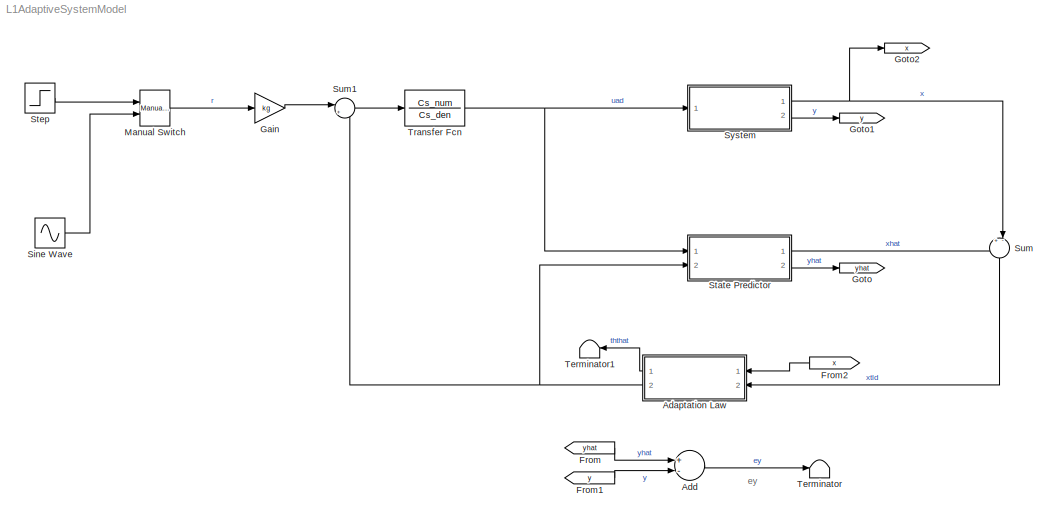
MODEL L1AdaptiveSystemModel
KIND model
CONFIG InitFcn = initL1AdaptiveSystemModel
CONFIG StopFcn = plotlab
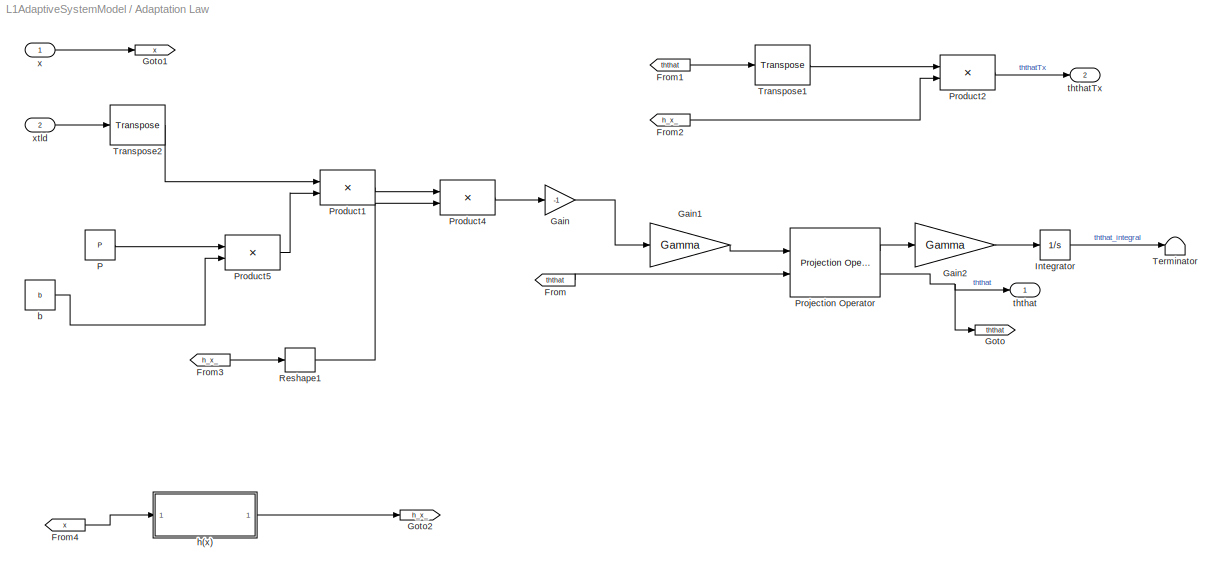
BLOCK [SubSystem] Adaptation Law
  FunctionWithSeparateData = off
  MaskHideContents = off
  MinAlgLoopOccurrences = on
  Opaque = off
  Ports = [2, 2]
  PropExecContextOutsideSubsystem = off
  RTWSystemCode = Auto
  RequestExecContextInheritance = off
  TreatAsAtomicUnit = on
BLOCK [From] Adaptation Law/From
  GotoTag = ththat
BLOCK [From] Adaptation Law/From1
  GotoTag = ththat
BLOCK [From] Adaptation Law/From2
  GotoTag = h_x_
BLOCK [From] Adaptation Law/From3
  GotoTag = h_x_
BLOCK [From] Adaptation Law/From4
  GotoTag = x
BLOCK [Gain] Adaptation Law/Gain
  Gain = -1
  OutDataType = fixdt(1, 16)
  OutDataTypeMode = Inherit via internal rule
  OutDataTypeStr = Inherit: Inherit via internal rule
  OutScaling = 2^0
  ParamDataTypeStr = Inherit: Inherit via internal rule
  ParameterDataType = fixdt(1, 16)
  ParameterDataTypeMode = Inherit via internal rule
  ParameterScaling = 2^0
  SaturateOnIntegerOverflow = off
BLOCK [Gain] Adaptation Law/Gain1
  Gain = Gamma
  OutDataType = fixdt(1, 16)
  OutDataTypeMode = Inherit via internal rule
  OutDataTypeStr = Inherit: Inherit via internal rule
  OutScaling = 2^0
  ParamDataTypeStr = Inherit: Inherit via internal rule
  ParameterDataType = fixdt(1, 16)
  ParameterDataTypeMode = Inherit via internal rule
  ParameterScaling = 2^0
  SaturateOnIntegerOverflow = off
BLOCK [Gain] Adaptation Law/Gain2
  Gain = Gamma
  OutDataType = fixdt(1, 16)
  OutDataTypeMode = Inherit via internal rule
  OutDataTypeStr = Inherit: Inherit via internal rule
  OutScaling = 2^0
  ParamDataTypeStr = Inherit: Inherit via internal rule
  ParameterDataType = fixdt(1, 16)
  ParameterDataTypeMode = Inherit via internal rule
  ParameterScaling = 2^0
  SaturateOnIntegerOverflow = off
BLOCK [Goto] Adaptation Law/Goto
  GotoTag = ththat
  TagVisibility = local
BLOCK [Goto] Adaptation Law/Goto1
  GotoTag = x
  TagVisibility = local
BLOCK [Goto] Adaptation Law/Goto2
  GotoTag = h_x_
  TagVisibility = local
BLOCK [Integrator] Adaptation Law/Integrator
  InitialCondition = ththat0
  Ports = [1, 1]
BLOCK [Constant] Adaptation Law/P
  OutDataType = fixdt(1, 16)
  OutScaling = 2^0
  Value = P
  VectorParams1D = off
BLOCK [Product] Adaptation Law/Product1
  InputSameDT = off
  Multiplication = Matrix(*)
  OutDataType = fixdt(1, 16)
  OutDataTypeMode = Inherit via internal rule
  OutDataTypeStr = Inherit: Inherit via internal rule
  OutScaling = 2^0
  Ports = [2, 1]
  SaturateOnIntegerOverflow = off
BLOCK [Product] Adaptation Law/Product2
  InputSameDT = off
  Multiplication = Matrix(*)
  OutDataType = fixdt(1, 16)
  OutDataTypeMode = Inherit via internal rule
  OutDataTypeStr = Inherit: Inherit via internal rule
  OutScaling = 2^0
  Ports = [2, 1]
  SaturateOnIntegerOverflow = off
BLOCK [Product] Adaptation Law/Product4
  InputSameDT = off
  OutDataType = fixdt(1, 16)
  OutDataTypeMode = Inherit via internal rule
  OutDataTypeStr = Inherit: Inherit via internal rule
  OutScaling = 2^0
  Ports = [2, 1]
  SaturateOnIntegerOverflow = off
BLOCK [Product] Adaptation Law/Product5
  InputSameDT = off
  Multiplication = Matrix(*)
  OutDataType = fixdt(1, 16)
  OutDataTypeMode = Inherit via internal rule
  OutDataTypeStr = Inherit: Inherit via internal rule
  OutScaling = 2^0
  Ports = [2, 1]
  SaturateOnIntegerOverflow = off
BLOCK [Reference] Adaptation Law/Projection Operator  REF=Projection/Projection Operator
  EpsilonTheta = .1
  FunctionWithSeparateData = off
  Ports = [2, 2]
  Pr0 = ththat0
  Prcenter = 0
  Prmax = 1
  RTWMemSecDataConstants = Inherit from model
  RTWMemSecDataInternal = Inherit from model
  RTWMemSecDataParameters = Inherit from model
  RTWMemSecFuncExecute = Inherit from model
  RTWMemSecFuncInitTerm = Inherit from model
  ShowPortLabels = FromPortIcon
  SourceBlock = Projection/Projection Operator
  SystemSampleTime = -1
BLOCK [Reshape] Adaptation Law/Reshape1
  OutputDimensionality = Column vector (2-D)
  OutputDimensions = [1]
  Ports = [1, 1]
BLOCK [Terminator] Adaptation Law/Terminator
BLOCK [Reference] Adaptation Law/Transpose1  REF=dspmtrx3/Transpose
  FunctionWithSeparateData = off
  Hermitian = off
  Ports = [1, 1]
  RTWMemSecDataConstants = Inherit from model
  RTWMemSecDataInternal = Inherit from model
  RTWMemSecDataParameters = Inherit from model
  RTWMemSecFuncExecute = Inherit from model
  RTWMemSecFuncInitTerm = Inherit from model
  ShowPortLabels = FromPortIcon
  SourceBlock = dspmtrx3/Transpose
  SourceType = Transpose
  SystemSampleTime = -1
  overflowFlag = off
BLOCK [Reference] Adaptation Law/Transpose2  REF=dspmtrx3/Transpose
  FunctionWithSeparateData = off
  Hermitian = off
  Ports = [1, 1]
  RTWMemSecDataConstants = Inherit from model
  RTWMemSecDataInternal = Inherit from model
  RTWMemSecDataParameters = Inherit from model
  RTWMemSecFuncExecute = Inherit from model
  RTWMemSecFuncInitTerm = Inherit from model
  ShowPortLabels = FromPortIcon
  SourceBlock = dspmtrx3/Transpose
  SourceType = Transpose
  SystemSampleTime = -1
  overflowFlag = off
BLOCK [Constant] Adaptation Law/b
  OutDataType = fixdt(1, 16)
  OutScaling = 2^0
  Value = b
  VectorParams1D = off
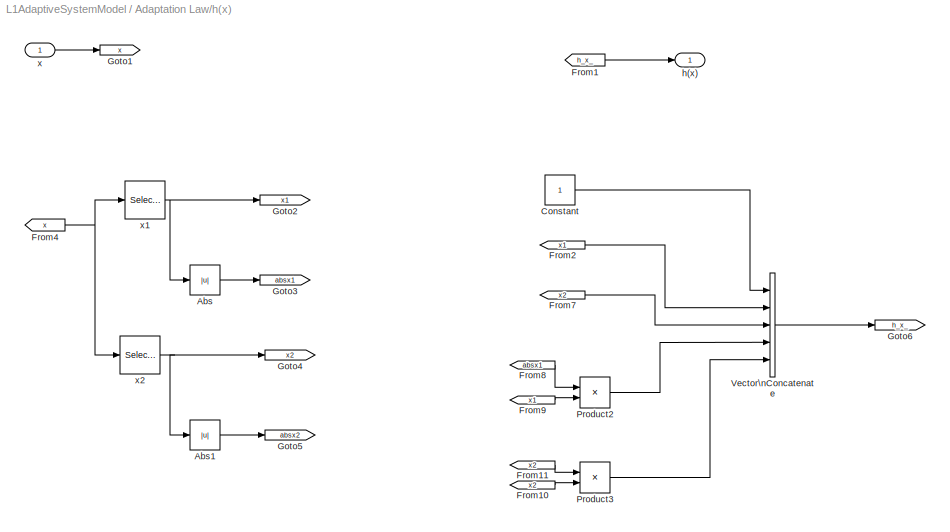
BLOCK [SubSystem] Adaptation Law/h(x)
  FunctionWithSeparateData = off
  MaskHideContents = off
  MinAlgLoopOccurrences = off
  Opaque = off
  Ports = [1, 1]
  PropExecContextOutsideSubsystem = off
  RTWSystemCode = Auto
  RequestExecContextInheritance = off
  TreatAsAtomicUnit = on
BLOCK [Abs] Adaptation Law/h(x)/Abs
  OutDataType = fixdt(1, 16)
  OutScaling = 2^0
  SaturateOnIntegerOverflow = off
BLOCK [Abs] Adaptation Law/h(x)/Abs1
  OutDataType = fixdt(1, 16)
  OutScaling = 2^0
  SaturateOnIntegerOverflow = off
BLOCK [Constant] Adaptation Law/h(x)/Constant
  OutDataType = fixdt(1, 16)
  OutScaling = 2^0
BLOCK [From] Adaptation Law/h(x)/From1
  GotoTag = h_x_
BLOCK [From] Adaptation Law/h(x)/From10
  GotoTag = x2
BLOCK [From] Adaptation Law/h(x)/From11
  GotoTag = x2
BLOCK [From] Adaptation Law/h(x)/From2
  GotoTag = x1
BLOCK [From] Adaptation Law/h(x)/From4
  GotoTag = x
BLOCK [From] Adaptation Law/h(x)/From7
  GotoTag = x2
BLOCK [From] Adaptation Law/h(x)/From8
  GotoTag = absx1
BLOCK [From] Adaptation Law/h(x)/From9
  GotoTag = x1
BLOCK [Goto] Adaptation Law/h(x)/Goto1
  GotoTag = x
  TagVisibility = local
BLOCK [Goto] Adaptation Law/h(x)/Goto2
  GotoTag = x1
  TagVisibility = local
BLOCK [Goto] Adaptation Law/h(x)/Goto3
  GotoTag = absx1
  TagVisibility = local
BLOCK [Goto] Adaptation Law/h(x)/Goto4
  GotoTag = x2
  TagVisibility = local
BLOCK [Goto] Adaptation Law/h(x)/Goto5
  GotoTag = absx2
  TagVisibility = local
BLOCK [Goto] Adaptation Law/h(x)/Goto6
  GotoTag = h_x_
  TagVisibility = local
BLOCK [Product] Adaptation Law/h(x)/Product2
  InputSameDT = off
  OutDataType = fixdt(1, 16)
  OutDataTypeMode = Inherit via internal rule
  OutDataTypeStr = Inherit: Inherit via internal rule
  OutScaling = 2^0
  Ports = [2, 1]
  SaturateOnIntegerOverflow = off
BLOCK [Product] Adaptation Law/h(x)/Product3
  InputSameDT = off
  OutDataType = fixdt(1, 16)
  OutDataTypeMode = Inherit via internal rule
  OutDataTypeStr = Inherit: Inherit via internal rule
  OutScaling = 2^0
  Ports = [2, 1]
  SaturateOnIntegerOverflow = off
BLOCK [Concatenate] Adaptation Law/h(x)/Vector\nConcatenate
  Mode = Vector
  NumInputs = 5
  Ports = [5, 1]
BLOCK [Outport] Adaptation Law/h(x)/h(x)
  IconDisplay = Port number
  OutDataType = fixdt(1, 16)
  OutScaling = 2^0
BLOCK [Inport] Adaptation Law/h(x)/x
  IconDisplay = Port number
  OutDataType = fixdt(1, 16)
  OutScaling = 2^0
BLOCK [Selector] Adaptation Law/h(x)/x1
  IndexOptions = Index vector (dialog)
  Indices = [1 ]
  InputPortWidth = 2
  OutputSizes = 1
  Ports = [1, 1]
BLOCK [Selector] Adaptation Law/h(x)/x2
  IndexOptions = Index vector (dialog)
  Indices = 2
  InputPortWidth = 2
  OutputSizes = 1
  Ports = [1, 1]
BLOCK [Outport] Adaptation Law/ththat
  IconDisplay = Port number
  OutDataType = fixdt(1, 16)
  OutScaling = 2^0
BLOCK [Outport] Adaptation Law/ththatTx
  IconDisplay = Port number
  OutDataType = fixdt(1, 16)
  OutScaling = 2^0
  Port = 2
BLOCK [Inport] Adaptation Law/x
  IconDisplay = Port number
  OutDataType = fixdt(1, 16)
  OutScaling = 2^0
BLOCK [Inport] Adaptation Law/xtld
  IconDisplay = Port number
  OutDataType = fixdt(1, 16)
  OutScaling = 2^0
  Port = 2
BLOCK [Sum] Add
  InputSameDT = off
  Inputs = +-
  OutDataType = fixdt(1, 16)
  OutDataTypeMode = Inherit via internal rule
  OutDataTypeStr = Inherit: Inherit via internal rule
  OutScaling = 2^-10
  Ports = [2, 1]
  SaturateOnIntegerOverflow = off
BLOCK [From] From
  GotoTag = yhat
BLOCK [From] From1
  GotoTag = y
BLOCK [From] From2
  GotoTag = x
BLOCK [Gain] Gain
  Gain = kg
  OutDataType = fixdt(1, 16)
  OutDataTypeMode = Inherit via internal rule
  OutDataTypeStr = Inherit: Inherit via internal rule
  OutScaling = 2^0
  ParamDataTypeStr = Inherit: Inherit via internal rule
  ParameterDataType = fixdt(1, 16)
  ParameterDataTypeMode = Inherit via internal rule
  ParameterScaling = 2^0
  SaturateOnIntegerOverflow = off
BLOCK [Goto] Goto
  GotoTag = yhat
  TagVisibility = local
BLOCK [Goto] Goto1
  GotoTag = y
  TagVisibility = local
BLOCK [Goto] Goto2
  GotoTag = x
  TagVisibility = local
BLOCK [Reference] Manual Switch  REF=simulink/Signal\nRouting/Manual Switch
  FunctionWithSeparateData = off
  Ports = [2, 1]
  RTWMemSecDataConstants = Inherit from model
  RTWMemSecDataInternal = Inherit from model
  RTWMemSecDataParameters = Inherit from model
  RTWMemSecFuncExecute = Inherit from model
  RTWMemSecFuncInitTerm = Inherit from model
  ShowPortLabels = FromPortIcon
  SourceBlock = simulink/Signal\nRouting/Manual Switch
  SourceType = Manual Switch
  SystemSampleTime = -1
  action = 0
  sw = 0
  varsize = off
BLOCK [Sin] Sine Wave
  Amplitude = -2
  Bias = 0
  Frequency = 0.15
  Offset = 0
  Phase = 0
  Ports = [0, 1]
  SampleTime = 0
  Samples = 10
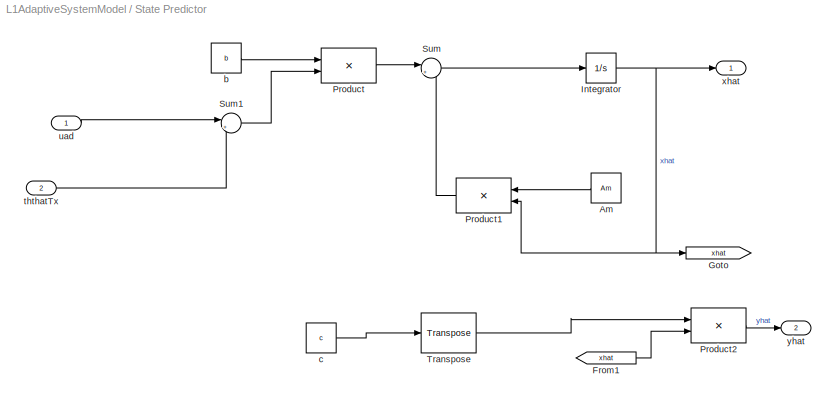
BLOCK [SubSystem] State Predictor
  FunctionWithSeparateData = off
  MaskHideContents = off
  MinAlgLoopOccurrences = on
  Opaque = off
  Ports = [2, 2]
  PropExecContextOutsideSubsystem = off
  RTWSystemCode = Auto
  RequestExecContextInheritance = off
  TreatAsAtomicUnit = on
BLOCK [Constant] State Predictor/Am
  OutDataType = fixdt(1, 16)
  OutScaling = 2^0
  Value = Am
  VectorParams1D = off
BLOCK [From] State Predictor/From1
  GotoTag = xhat
BLOCK [Goto] State Predictor/Goto
  GotoTag = xhat
  TagVisibility = local
BLOCK [Integrator] State Predictor/Integrator
  InitialCondition = xhat0
  Ports = [1, 1]
BLOCK [Product] State Predictor/Product
  InputSameDT = off
  Multiplication = Matrix(*)
  OutDataType = fixdt(1, 16)
  OutDataTypeMode = Inherit via internal rule
  OutDataTypeStr = Inherit: Inherit via internal rule
  OutScaling = 2^0
  Ports = [2, 1]
  SaturateOnIntegerOverflow = off
BLOCK [Product] State Predictor/Product1
  InputSameDT = off
  Multiplication = Matrix(*)
  OutDataType = fixdt(1, 16)
  OutDataTypeMode = Inherit via internal rule
  OutDataTypeStr = Inherit: Inherit via internal rule
  OutScaling = 2^0
  Ports = [2, 1]
  SaturateOnIntegerOverflow = off
BLOCK [Product] State Predictor/Product2
  InputSameDT = off
  Multiplication = Matrix(*)
  OutDataType = fixdt(1, 16)
  OutDataTypeMode = Inherit via internal rule
  OutDataTypeStr = Inherit: Inherit via internal rule
  OutScaling = 2^0
  Ports = [2, 1]
  SaturateOnIntegerOverflow = off
BLOCK [Sum] State Predictor/Sum
  IconShape = round
  InputSameDT = off
  Inputs = |++
  OutDataType = fixdt(1, 16)
  OutDataTypeMode = Inherit via internal rule
  OutDataTypeStr = Inherit: Inherit via internal rule
  OutScaling = 2^0
  Ports = [2, 1]
  SaturateOnIntegerOverflow = off
BLOCK [Sum] State Predictor/Sum1
  IconShape = round
  InputSameDT = off
  Inputs = |++
  OutDataType = fixdt(1, 16)
  OutDataTypeMode = Inherit via internal rule
  OutDataTypeStr = Inherit: Inherit via internal rule
  OutScaling = 2^0
  Ports = [2, 1]
  SaturateOnIntegerOverflow = off
BLOCK [Reference] State Predictor/Transpose  REF=dspmtrx3/Transpose
  FunctionWithSeparateData = off
  Hermitian = off
  Ports = [1, 1]
  RTWMemSecDataConstants = Inherit from model
  RTWMemSecDataInternal = Inherit from model
  RTWMemSecDataParameters = Inherit from model
  RTWMemSecFuncExecute = Inherit from model
  RTWMemSecFuncInitTerm = Inherit from model
  ShowPortLabels = FromPortIcon
  SourceBlock = dspmtrx3/Transpose
  SourceType = Transpose
  SystemSampleTime = -1
  overflowFlag = off
BLOCK [Constant] State Predictor/b
  OutDataType = fixdt(1, 16)
  OutScaling = 2^0
  Value = b
  VectorParams1D = off
BLOCK [Constant] State Predictor/c
  OutDataType = fixdt(1, 16)
  OutScaling = 2^0
  Value = c
  VectorParams1D = off
BLOCK [Inport] State Predictor/ththatTx
  IconDisplay = Port number
  OutDataType = fixdt(1, 16)
  OutScaling = 2^0
  Port = 2
BLOCK [Inport] State Predictor/uad
  IconDisplay = Port number
  OutDataType = fixdt(1, 16)
  OutScaling = 2^0
BLOCK [Outport] State Predictor/xhat
  IconDisplay = Port number
  OutDataType = fixdt(1, 16)
  OutScaling = 2^0
BLOCK [Outport] State Predictor/yhat
  IconDisplay = Port number
  OutDataType = fixdt(1, 16)
  OutScaling = 2^0
  Port = 2
BLOCK [Step] Step
  SampleTime = 0
  VectorParams1D = off
BLOCK [Sum] Sum
  IconShape = round
  InputSameDT = off
  Inputs = +-|
  OutDataType = fixdt(1, 16)
  OutDataTypeMode = Inherit via internal rule
  OutDataTypeStr = Inherit: Inherit via internal rule
  OutScaling = 2^0
  Ports = [2, 1]
  SaturateOnIntegerOverflow = off
BLOCK [Sum] Sum1
  IconShape = round
  InputSameDT = off
  Inputs = |+-
  OutDataType = fixdt(1, 16)
  OutDataTypeMode = Inherit via internal rule
  OutDataTypeStr = Inherit: Inherit via internal rule
  OutScaling = 2^0
  Ports = [2, 1]
  SaturateOnIntegerOverflow = off
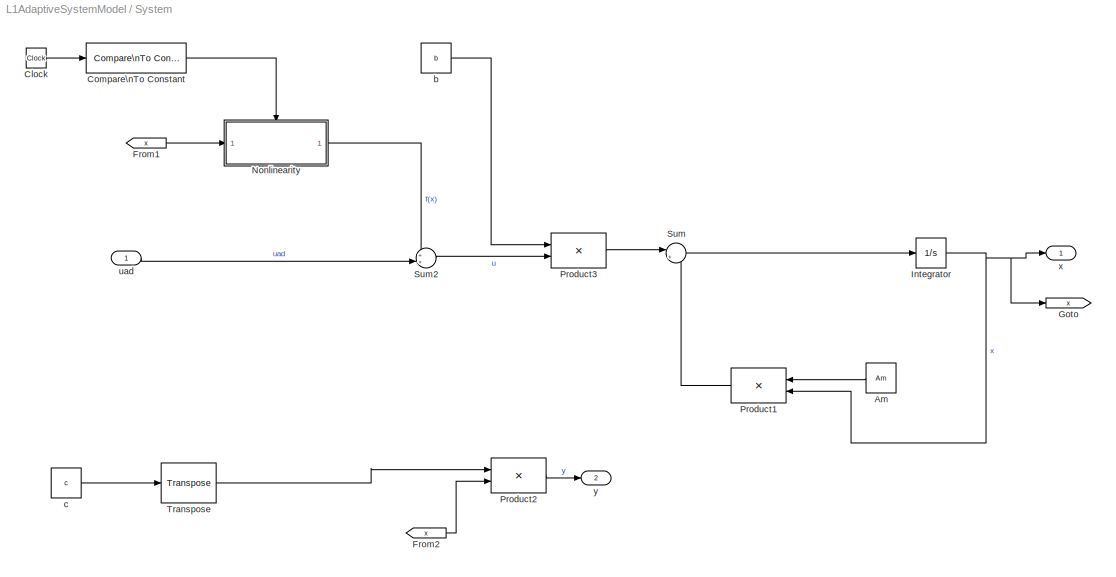
BLOCK [SubSystem] System
  FunctionWithSeparateData = off
  MaskHideContents = off
  MinAlgLoopOccurrences = on
  Opaque = off
  Ports = [1, 2]
  PropExecContextOutsideSubsystem = off
  RTWSystemCode = Auto
  RequestExecContextInheritance = off
  TreatAsAtomicUnit = on
BLOCK [Constant] System/Am
  OutDataType = fixdt(1, 16)
  OutScaling = 2^0
  Value = Am
  VectorParams1D = off
BLOCK [Clock] System/Clock
  Decimation = 10
BLOCK [Reference] System/Compare\nTo Constant  REF=simulink/Logic and Bit\nOperations/Compare\nTo Constant
  FunctionWithSeparateData = off
  LogicOutDataTypeMode = uint8
  Ports = [1, 1]
  RTWMemSecDataConstants = Inherit from model
  RTWMemSecDataInternal = Inherit from model
  RTWMemSecDataParameters = Inherit from model
  RTWMemSecFuncExecute = Inherit from model
  RTWMemSecFuncInitTerm = Inherit from model
  ShowPortLabels = FromPortIcon
  SourceBlock = simulink/Logic and Bit\nOperations/Compare\nTo Constant
  SourceType = Compare To Constant
  SystemSampleTime = -1
  ZeroCross = off
  const = tNonlinEnable
  relop = >=
BLOCK [From] System/From1
  GotoTag = x
BLOCK [From] System/From2
  GotoTag = x
BLOCK [Goto] System/Goto
  GotoTag = x
  TagVisibility = local
BLOCK [Integrator] System/Integrator
  InitialCondition = x0
  Ports = [1, 1]
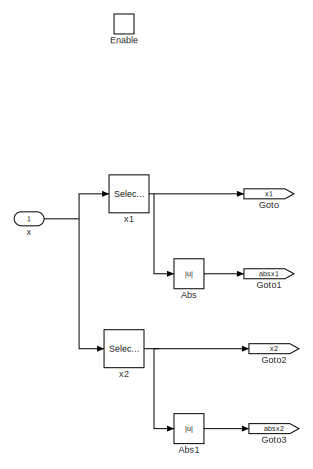
[diagram: System/Nonlinearity - part 1/2, top left region]
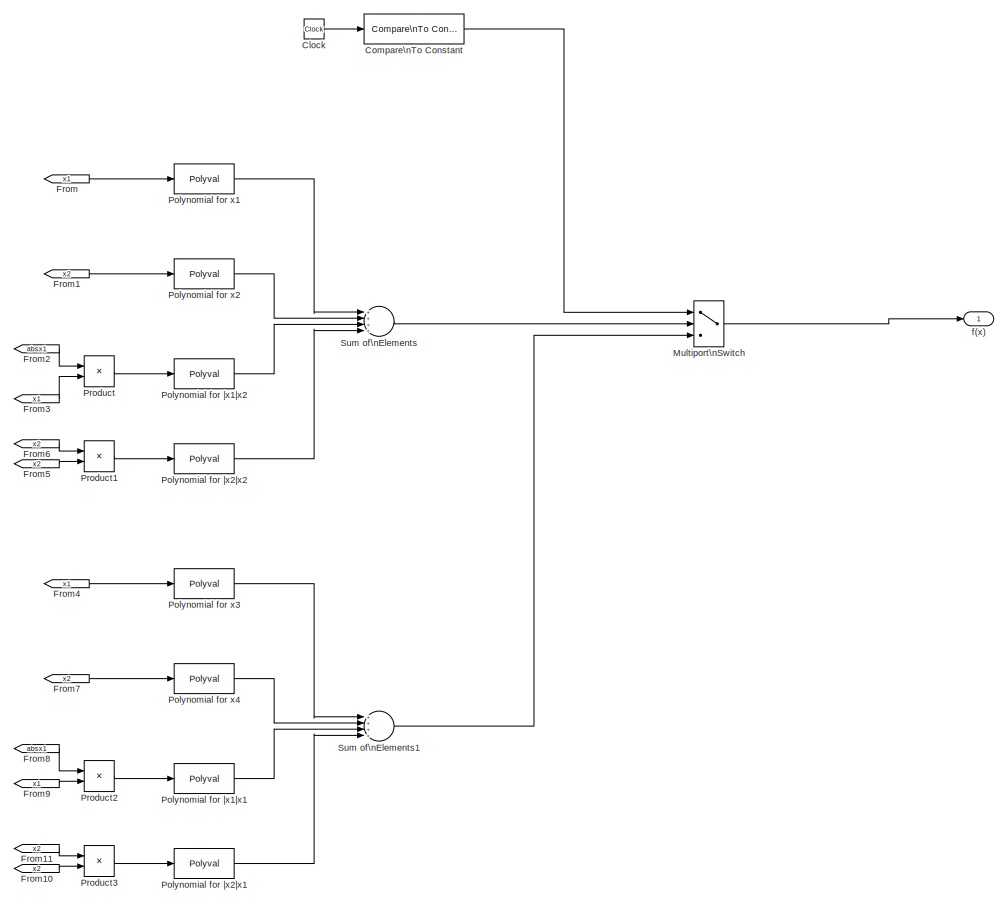
[diagram: System/Nonlinearity - part 2/2, most of the canvas]
BLOCK [SubSystem] System/Nonlinearity
  FunctionWithSeparateData = off
  MaskHideContents = off
  MinAlgLoopOccurrences = off
  Opaque = off
  Ports = [1, 1, 1]
  PropExecContextOutsideSubsystem = off
  RTWSystemCode = Auto
  RequestExecContextInheritance = off
  TreatAsAtomicUnit = on
BLOCK [Abs] System/Nonlinearity/Abs
  OutDataType = fixdt(1, 16)
  OutScaling = 2^0
  SaturateOnIntegerOverflow = off
BLOCK [Abs] System/Nonlinearity/Abs1
  OutDataType = fixdt(1, 16)
  OutScaling = 2^0
  SaturateOnIntegerOverflow = off
BLOCK [Clock] System/Nonlinearity/Clock
  Decimation = 10
BLOCK [Reference] System/Nonlinearity/Compare\nTo Constant  REF=simulink/Logic and Bit\nOperations/Compare\nTo Constant
  FunctionWithSeparateData = off
  LogicOutDataTypeMode = uint8
  Ports = [1, 1]
  RTWMemSecDataConstants = Inherit from model
  RTWMemSecDataInternal = Inherit from model
  RTWMemSecDataParameters = Inherit from model
  RTWMemSecFuncExecute = Inherit from model
  RTWMemSecFuncInitTerm = Inherit from model
  ShowPortLabels = FromPortIcon
  SourceBlock = simulink/Logic and Bit\nOperations/Compare\nTo Constant
  SourceType = Compare To Constant
  SystemSampleTime = -1
  ZeroCross = off
  const = tNonlinChange
  relop = >=
BLOCK [EnablePort] System/Nonlinearity/Enable
  Ports = []
BLOCK [From] System/Nonlinearity/From
  GotoTag = x1
BLOCK [From] System/Nonlinearity/From1
  GotoTag = x2
BLOCK [From] System/Nonlinearity/From10
  GotoTag = x2
BLOCK [From] System/Nonlinearity/From11
  GotoTag = x2
BLOCK [From] System/Nonlinearity/From2
  GotoTag = absx1
BLOCK [From] System/Nonlinearity/From3
  GotoTag = x1
BLOCK [From] System/Nonlinearity/From4
  GotoTag = x1
BLOCK [From] System/Nonlinearity/From5
  GotoTag = x2
BLOCK [From] System/Nonlinearity/From6
  GotoTag = x2
BLOCK [From] System/Nonlinearity/From7
  GotoTag = x2
BLOCK [From] System/Nonlinearity/From8
  GotoTag = absx1
BLOCK [From] System/Nonlinearity/From9
  GotoTag = x1
BLOCK [Goto] System/Nonlinearity/Goto
  GotoTag = x1
  TagVisibility = local
BLOCK [Goto] System/Nonlinearity/Goto1
  GotoTag = absx1
  TagVisibility = local
BLOCK [Goto] System/Nonlinearity/Goto2
  GotoTag = x2
  TagVisibility = local
BLOCK [Goto] System/Nonlinearity/Goto3
  GotoTag = absx2
  TagVisibility = local
BLOCK [MultiPortSwitch] System/Nonlinearity/Multiport\nSwitch
  InputSameDT = off
  Inputs = 2
  OutDataType = fixdt(1, 16)
  OutScaling = 2^0
  Ports = [3, 1]
  SaturateOnIntegerOverflow = off
  zeroidx = on
BLOCK [Polyval] System/Nonlinearity/Polynomial for x1
  Coefs = fx_p_x1_1
BLOCK [Polyval] System/Nonlinearity/Polynomial for x2
  Coefs = fx_p_x2_1
BLOCK [Polyval] System/Nonlinearity/Polynomial for x3
  Coefs = fx_p_x1_2
BLOCK [Polyval] System/Nonlinearity/Polynomial for x4
  Coefs = fx_p_x2_2
BLOCK [Polyval] System/Nonlinearity/Polynomial for |x1|x1
  Coefs = fx_p_absx1x2_2
BLOCK [Polyval] System/Nonlinearity/Polynomial for |x1|x2
  Coefs = fx_p_absx1x2_1
BLOCK [Polyval] System/Nonlinearity/Polynomial for |x2|x1
  Coefs = fx_p_absx2x2_2
BLOCK [Polyval] System/Nonlinearity/Polynomial for |x2|x2
  Coefs = fx_p_absx2x2_1
BLOCK [Product] System/Nonlinearity/Product
  InputSameDT = off
  OutDataType = fixdt(1, 16)
  OutDataTypeMode = Inherit via internal rule
  OutDataTypeStr = Inherit: Inherit via internal rule
  OutScaling = 2^0
  Ports = [2, 1]
  SaturateOnIntegerOverflow = off
BLOCK [Product] System/Nonlinearity/Product1
  InputSameDT = off
  OutDataType = fixdt(1, 16)
  OutDataTypeMode = Inherit via internal rule
  OutDataTypeStr = Inherit: Inherit via internal rule
  OutScaling = 2^0
  Ports = [2, 1]
  SaturateOnIntegerOverflow = off
BLOCK [Product] System/Nonlinearity/Product2
  InputSameDT = off
  OutDataType = fixdt(1, 16)
  OutDataTypeMode = Inherit via internal rule
  OutDataTypeStr = Inherit: Inherit via internal rule
  OutScaling = 2^0
  Ports = [2, 1]
  SaturateOnIntegerOverflow = off
BLOCK [Product] System/Nonlinearity/Product3
  InputSameDT = off
  OutDataType = fixdt(1, 16)
  OutDataTypeMode = Inherit via internal rule
  OutDataTypeStr = Inherit: Inherit via internal rule
  OutScaling = 2^0
  Ports = [2, 1]
  SaturateOnIntegerOverflow = off
BLOCK [Sum] System/Nonlinearity/Sum of\nElements
  InputSameDT = off
  Inputs = ++++
  OutDataType = fixdt(1, 16)
  OutDataTypeMode = Inherit via internal rule
  OutDataTypeStr = Inherit: Inherit via internal rule
  OutScaling = 2^-10
  Ports = [4, 1]
  SaturateOnIntegerOverflow = off
BLOCK [Sum] System/Nonlinearity/Sum of\nElements1
  InputSameDT = off
  Inputs = ++++
  OutDataType = fixdt(1, 16)
  OutDataTypeMode = Inherit via internal rule
  OutDataTypeStr = Inherit: Inherit via internal rule
  OutScaling = 2^-10
  Ports = [4, 1]
  SaturateOnIntegerOverflow = off
BLOCK [Outport] System/Nonlinearity/f(x)
  IconDisplay = Port number
  OutDataType = fixdt(1, 16)
  OutScaling = 2^0
BLOCK [Inport] System/Nonlinearity/x
  IconDisplay = Port number
  OutDataType = fixdt(1, 16)
  OutScaling = 2^0
BLOCK [Selector] System/Nonlinearity/x1
  IndexOptions = Index vector (dialog)
  Indices = [1 ]
  InputPortWidth = 2
  OutputSizes = 1
  Ports = [1, 1]
BLOCK [Selector] System/Nonlinearity/x2
  IndexOptions = Index vector (dialog)
  Indices = 2
  InputPortWidth = 2
  OutputSizes = 1
  Ports = [1, 1]
BLOCK [Product] System/Product1
  InputSameDT = off
  Multiplication = Matrix(*)
  OutDataType = fixdt(1, 16)
  OutDataTypeMode = Inherit via internal rule
  OutDataTypeStr = Inherit: Inherit via internal rule
  OutScaling = 2^0
  Ports = [2, 1]
  SaturateOnIntegerOverflow = off
BLOCK [Product] System/Product2
  InputSameDT = off
  Multiplication = Matrix(*)
  OutDataType = fixdt(1, 16)
  OutDataTypeMode = Inherit via internal rule
  OutDataTypeStr = Inherit: Inherit via internal rule
  OutScaling = 2^0
  Ports = [2, 1]
  SaturateOnIntegerOverflow = off
BLOCK [Product] System/Product3
  InputSameDT = off
  Multiplication = Matrix(*)
  OutDataType = fixdt(1, 16)
  OutDataTypeMode = Inherit via internal rule
  OutDataTypeStr = Inherit: Inherit via internal rule
  OutScaling = 2^0
  Ports = [2, 1]
  SaturateOnIntegerOverflow = off
BLOCK [Sum] System/Sum
  IconShape = round
  InputSameDT = off
  Inputs = |++
  OutDataType = fixdt(1, 16)
  OutDataTypeMode = Inherit via internal rule
  OutDataTypeStr = Inherit: Inherit via internal rule
  OutScaling = 2^0
  Ports = [2, 1]
  SaturateOnIntegerOverflow = off
BLOCK [Sum] System/Sum2
  IconShape = round
  InputSameDT = off
  Inputs = ++|
  OutDataType = fixdt(1, 16)
  OutDataTypeMode = Inherit via internal rule
  OutDataTypeStr = Inherit: Inherit via internal rule
  OutScaling = 2^0
  Ports = [2, 1]
  SaturateOnIntegerOverflow = off
BLOCK [Reference] System/Transpose  REF=dspmtrx3/Transpose
  FunctionWithSeparateData = off
  Hermitian = off
  Ports = [1, 1]
  RTWMemSecDataConstants = Inherit from model
  RTWMemSecDataInternal = Inherit from model
  RTWMemSecDataParameters = Inherit from model
  RTWMemSecFuncExecute = Inherit from model
  RTWMemSecFuncInitTerm = Inherit from model
  ShowPortLabels = FromPortIcon
  SourceBlock = dspmtrx3/Transpose
  SourceType = Transpose
  SystemSampleTime = -1
  overflowFlag = off
BLOCK [Constant] System/b
  OutDataType = fixdt(1, 16)
  OutScaling = 2^0
  Value = b
  VectorParams1D = off
BLOCK [Constant] System/c
  OutDataType = fixdt(1, 16)
  OutScaling = 2^0
  Value = c
  VectorParams1D = off
BLOCK [Inport] System/uad
  IconDisplay = Port number
  OutDataType = fixdt(1, 16)
  OutScaling = 2^0
BLOCK [Outport] System/x
  IconDisplay = Port number
  OutDataType = fixdt(1, 16)
  OutScaling = 2^0
BLOCK [Outport] System/y
  IconDisplay = Port number
  OutDataType = fixdt(1, 16)
  OutScaling = 2^0
  Port = 2
BLOCK [Terminator] Terminator
BLOCK [Terminator] Terminator1
BLOCK [TransferFcn] Transfer Fcn
  Denominator = Cs_den
  Numerator = Cs_num
ANNOTATION (root): ey
LINE Adaptation Law/From1:1 -> Adaptation Law/Transpose1:1
LINE Adaptation Law/From2:1 -> Adaptation Law/Product2:2
LINE Adaptation Law/From3:1 -> Adaptation Law/Reshape1:1
LINE Adaptation Law/From4:1 -> Adaptation Law/h(x):1
LINE Adaptation Law/From:1 -> Adaptation Law/Projection Operator:2
LINE Adaptation Law/Gain1:1 -> Adaptation Law/Projection Operator:1
LINE Adaptation Law/Gain2:1 -> Adaptation Law/Integrator:1
LINE Adaptation Law/Gain:1 -> Adaptation Law/Gain1:1
LINE Adaptation Law/Integrator:1 -> Adaptation Law/Terminator:1
LINE Adaptation Law/P:1 -> Adaptation Law/Product5:1
LINE Adaptation Law/Product1:1 -> Adaptation Law/Product4:1
LINE Adaptation Law/Product2:1 -> Adaptation Law/ththatTx:1
LINE Adaptation Law/Product4:1 -> Adaptation Law/Gain:1
LINE Adaptation Law/Product5:1 -> Adaptation Law/Product1:2
LINE Adaptation Law/Projection Operator:1 -> Adaptation Law/Gain2:1
NET Adaptation Law/Projection Operator:2 -> Adaptation Law/Goto:1, Adaptation Law/ththat:1
LINE Adaptation Law/Reshape1:1 -> Adaptation Law/Product4:2
LINE Adaptation Law/Transpose1:1 -> Adaptation Law/Product2:1
LINE Adaptation Law/Transpose2:1 -> Adaptation Law/Product1:1
LINE Adaptation Law/b:1 -> Adaptation Law/Product5:2
LINE Adaptation Law/h(x)/Abs1:1 -> Adaptation Law/h(x)/Goto5:1
LINE Adaptation Law/h(x)/Abs:1 -> Adaptation Law/h(x)/Goto3:1
LINE Adaptation Law/h(x)/Constant:1 -> Adaptation Law/h(x)/Vector\nConcatenate:1
LINE Adaptation Law/h(x)/From10:1 -> Adaptation Law/h(x)/Product3:2
LINE Adaptation Law/h(x)/From11:1 -> Adaptation Law/h(x)/Product3:1
LINE Adaptation Law/h(x)/From1:1 -> Adaptation Law/h(x)/h(x):1
LINE Adaptation Law/h(x)/From2:1 -> Adaptation Law/h(x)/Vector\nConcatenate:2
NET Adaptation Law/h(x)/From4:1 -> Adaptation Law/h(x)/x1:1, Adaptation Law/h(x)/x2:1
LINE Adaptation Law/h(x)/From7:1 -> Adaptation Law/h(x)/Vector\nConcatenate:3
LINE Adaptation Law/h(x)/From8:1 -> Adaptation Law/h(x)/Product2:1
LINE Adaptation Law/h(x)/From9:1 -> Adaptation Law/h(x)/Product2:2
LINE Adaptation Law/h(x)/Product2:1 -> Adaptation Law/h(x)/Vector\nConcatenate:4
LINE Adaptation Law/h(x)/Product3:1 -> Adaptation Law/h(x)/Vector\nConcatenate:5
LINE Adaptation Law/h(x)/Vector\nConcatenate:1 -> Adaptation Law/h(x)/Goto6:1
NET Adaptation Law/h(x)/x1:1 -> Adaptation Law/h(x)/Abs:1, Adaptation Law/h(x)/Goto2:1
NET Adaptation Law/h(x)/x2:1 -> Adaptation Law/h(x)/Abs1:1, Adaptation Law/h(x)/Goto4:1
LINE Adaptation Law/h(x)/x:1 -> Adaptation Law/h(x)/Goto1:1
LINE Adaptation Law/h(x):1 -> Adaptation Law/Goto2:1
LINE Adaptation Law/x:1 -> Adaptation Law/Goto1:1
LINE Adaptation Law/xtld:1 -> Adaptation Law/Transpose2:1
LINE Adaptation Law:1 -> Terminator1:1
NET Adaptation Law:2 -> State Predictor:2, Sum1:2
LINE Add:1 -> Terminator:1
LINE From1:1 -> Add:2
LINE From2:1 -> Adaptation Law:1
LINE From:1 -> Add:1
LINE Gain:1 -> Sum1:1
LINE Manual Switch:1 -> Gain:1
LINE Sine Wave:1 -> Manual Switch:2
LINE State Predictor/Am:1 -> State Predictor/Product1:1
LINE State Predictor/From1:1 -> State Predictor/Product2:2
NET State Predictor/Integrator:1 -> State Predictor/Goto:1, State Predictor/Product1:2, State Predictor/xhat:1
LINE State Predictor/Product1:1 -> State Predictor/Sum:2
LINE State Predictor/Product2:1 -> State Predictor/yhat:1
LINE State Predictor/Product:1 -> State Predictor/Sum:1
LINE State Predictor/Sum1:1 -> State Predictor/Product:2
LINE State Predictor/Sum:1 -> State Predictor/Integrator:1
LINE State Predictor/Transpose:1 -> State Predictor/Product2:1
LINE State Predictor/b:1 -> State Predictor/Product:1
LINE State Predictor/c:1 -> State Predictor/Transpose:1
LINE State Predictor/ththatTx:1 -> State Predictor/Sum1:2
LINE State Predictor/uad:1 -> State Predictor/Sum1:1
LINE State Predictor:1 -> Sum:1
LINE State Predictor:2 -> Goto:1
LINE Step:1 -> Manual Switch:1
LINE Sum1:1 -> Transfer Fcn:1
LINE Sum:1 -> Adaptation Law:2
LINE System/Am:1 -> System/Product1:1
LINE System/Clock:1 -> System/Compare\nTo Constant:1
LINE System/Compare\nTo Constant:1 -> System/Nonlinearity:enable
LINE System/From1:1 -> System/Nonlinearity:1
LINE System/From2:1 -> System/Product2:2
NET System/Integrator:1 -> System/Goto:1, System/Product1:2, System/x:1
LINE System/Nonlinearity/Abs1:1 -> System/Nonlinearity/Goto3:1
LINE System/Nonlinearity/Abs:1 -> System/Nonlinearity/Goto1:1
LINE System/Nonlinearity/Clock:1 -> System/Nonlinearity/Compare\nTo Constant:1
LINE System/Nonlinearity/Compare\nTo Constant:1 -> System/Nonlinearity/Multiport\nSwitch:1
LINE System/Nonlinearity/From10:1 -> System/Nonlinearity/Product3:2
LINE System/Nonlinearity/From11:1 -> System/Nonlinearity/Product3:1
LINE System/Nonlinearity/From1:1 -> System/Nonlinearity/Polynomial for x2:1
LINE System/Nonlinearity/From2:1 -> System/Nonlinearity/Product:1
LINE System/Nonlinearity/From3:1 -> System/Nonlinearity/Product:2
LINE System/Nonlinearity/From4:1 -> System/Nonlinearity/Polynomial for x3:1
LINE System/Nonlinearity/From5:1 -> System/Nonlinearity/Product1:2
LINE System/Nonlinearity/From6:1 -> System/Nonlinearity/Product1:1
LINE System/Nonlinearity/From7:1 -> System/Nonlinearity/Polynomial for x4:1
LINE System/Nonlinearity/From8:1 -> System/Nonlinearity/Product2:1
LINE System/Nonlinearity/From9:1 -> System/Nonlinearity/Product2:2
LINE System/Nonlinearity/From:1 -> System/Nonlinearity/Polynomial for x1:1
LINE System/Nonlinearity/Multiport\nSwitch:1 -> System/Nonlinearity/f(x):1
LINE System/Nonlinearity/Polynomial for x1:1 -> System/Nonlinearity/Sum of\nElements:1
LINE System/Nonlinearity/Polynomial for x2:1 -> System/Nonlinearity/Sum of\nElements:2
LINE System/Nonlinearity/Polynomial for x3:1 -> System/Nonlinearity/Sum of\nElements1:1
LINE System/Nonlinearity/Polynomial for x4:1 -> System/Nonlinearity/Sum of\nElements1:2
LINE System/Nonlinearity/Polynomial for |x1|x1:1 -> System/Nonlinearity/Sum of\nElements1:3
LINE System/Nonlinearity/Polynomial for |x1|x2:1 -> System/Nonlinearity/Sum of\nElements:3
LINE System/Nonlinearity/Polynomial for |x2|x1:1 -> System/Nonlinearity/Sum of\nElements1:4
LINE System/Nonlinearity/Polynomial for |x2|x2:1 -> System/Nonlinearity/Sum of\nElements:4
LINE System/Nonlinearity/Product1:1 -> System/Nonlinearity/Polynomial for |x2|x2:1
LINE System/Nonlinearity/Product2:1 -> System/Nonlinearity/Polynomial for |x1|x1:1
LINE System/Nonlinearity/Product3:1 -> System/Nonlinearity/Polynomial for |x2|x1:1
LINE System/Nonlinearity/Product:1 -> System/Nonlinearity/Polynomial for |x1|x2:1
LINE System/Nonlinearity/Sum of\nElements1:1 -> System/Nonlinearity/Multiport\nSwitch:3
LINE System/Nonlinearity/Sum of\nElements:1 -> System/Nonlinearity/Multiport\nSwitch:2
NET System/Nonlinearity/x1:1 -> System/Nonlinearity/Abs:1, System/Nonlinearity/Goto:1
NET System/Nonlinearity/x2:1 -> System/Nonlinearity/Abs1:1, System/Nonlinearity/Goto2:1
NET System/Nonlinearity/x:1 -> System/Nonlinearity/x1:1, System/Nonlinearity/x2:1
LINE System/Nonlinearity:1 -> System/Sum2:1
LINE System/Product1:1 -> System/Sum:2
LINE System/Product2:1 -> System/y:1
LINE System/Product3:1 -> System/Sum:1
LINE System/Sum2:1 -> System/Product3:2
LINE System/Sum:1 -> System/Integrator:1
LINE System/Transpose:1 -> System/Product2:1
LINE System/b:1 -> System/Product3:1
LINE System/c:1 -> System/Transpose:1
LINE System/uad:1 -> System/Sum2:2
NET System:1 -> Goto2:1, Sum:2
LINE System:2 -> Goto1:1
NET Transfer Fcn:1 -> State Predictor:1, System:1
note: NET lines group one-source signal fan-out (src -> all destinations, sorted); 1:1 wires keep LINE
